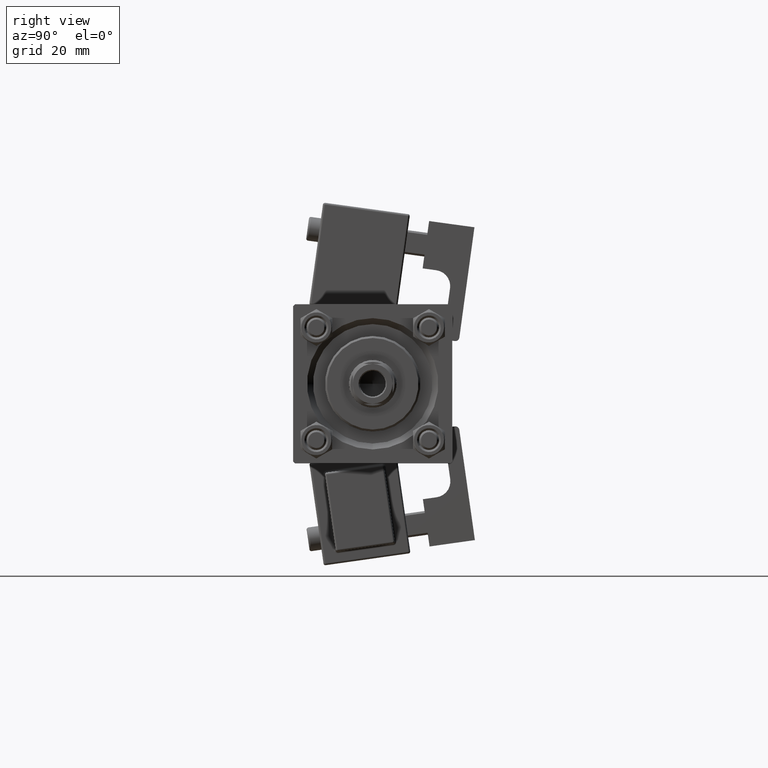
[diagram: clean part render]
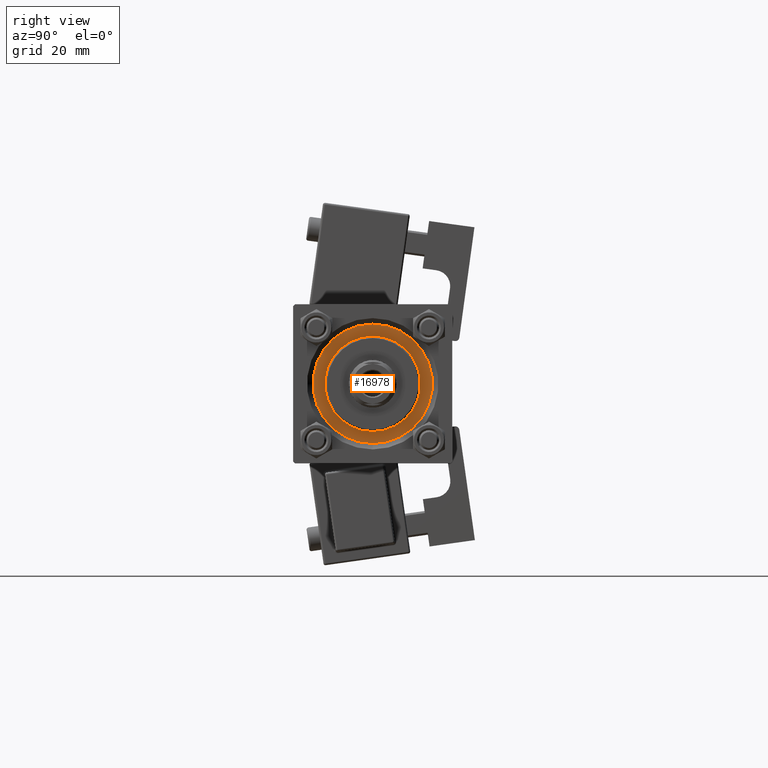
[diagram: same view with one face highlighted and labeled with its STEP entity id]
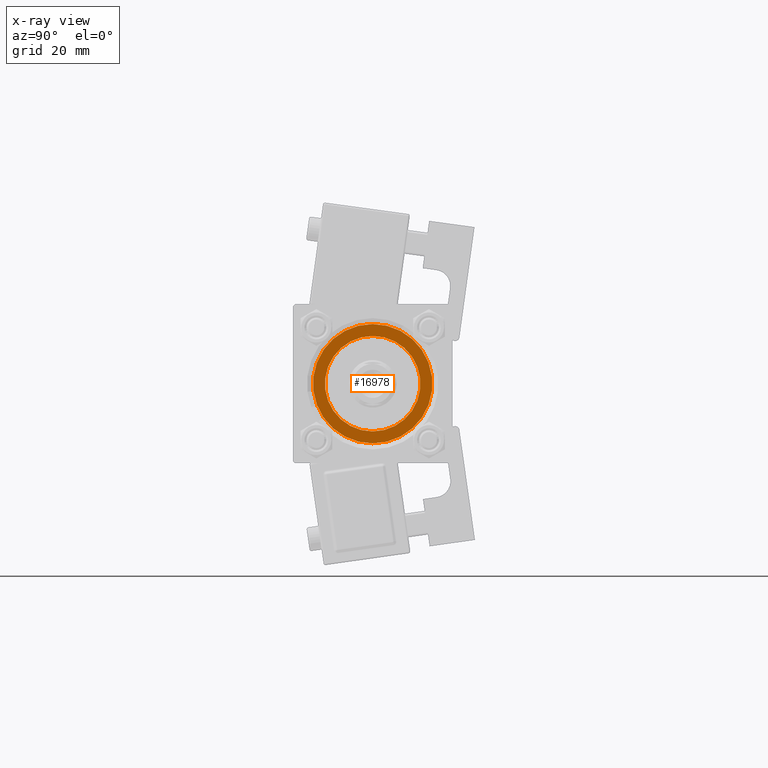
[diagram: x-ray of the same camera — body ghosted, the highlighted face saturated]
A machine part, right view. The second image highlights one B-rep face of the part: STEP entity #16978.
The next image is the same camera in x-ray: the body ghosted, the highlighted face saturated — about 0% of this face is hidden behind the body in this view.
In plain terms, the highlighted planar face has unit normal (1, 0, -0).
Its self-contained STEP definition (entity closure, byte-faithful):
#2430 = CIRCLE ( 'NONE', #24263, 15.00000000000000000 ) ;
#6551 = CARTESIAN_POINT ( 'NONE',  ( -15.00000000000000000, 0.000000000000000000, 28.69999999999999929 ) ) ;
#6954 = ORIENTED_EDGE ( 'NONE', *, *, #18732, .F. ) ;
#7937 = VERTEX_POINT ( 'NONE', #21733 ) ;
#8318 = FACE_OUTER_BOUND ( 'NONE', #44309, .T. ) ;
#10850 = DIRECTION ( 'NONE',  ( 0.000000000000000000, 0.000000000000000000, 1.000000000000000000 ) ) ;
#12019 = CARTESIAN_POINT ( 'NONE',  ( 0.000000000000000000, 0.000000000000000000, 28.69999999999999929 ) ) ;
#12253 = ORIENTED_EDGE ( 'NONE', *, *, #26109, .F. ) ;
#12805 = DIRECTION ( 'NONE',  ( 1.000000000000000000, 0.000000000000000000, 0.000000000000000000 ) ) ;
#15980 = CARTESIAN_POINT ( 'NONE',  ( 0.000000000000000000, 0.000000000000000000, 28.69999999999999929 ) ) ;
#16978 = ADVANCED_FACE ( 'NONE', ( #43867, #8318 ), #35701, .T. ) ;
#17719 = AXIS2_PLACEMENT_3D ( 'NONE', #32012, #19629, #24372 ) ;
#18162 = DIRECTION ( 'NONE',  ( 0.000000000000000000, 0.000000000000000000, 1.000000000000000000 ) ) ;
#18732 = EDGE_CURVE ( 'NONE', #48074, #7937, #50412, .T. ) ;
#19166 = ORIENTED_EDGE ( 'NONE', *, *, #41515, .T. ) ;
#19629 = DIRECTION ( 'NONE',  ( 0.000000000000000000, 0.000000000000000000, 1.000000000000000000 ) ) ;
#21733 = CARTESIAN_POINT ( 'NONE',  ( 12.00000000000000178, 1.469576158976824144E-15, 28.69999999999999929 ) ) ;
#22197 = DIRECTION ( 'NONE',  ( 1.000000000000000000, 0.000000000000000000, 0.000000000000000000 ) ) ;
#23108 = EDGE_CURVE ( 'NONE', #51819, #36523, #34591, .T. ) ;
#24263 = AXIS2_PLACEMENT_3D ( 'NONE', #50029, #18162, #50288 ) ;
#24372 = DIRECTION ( 'NONE',  ( 1.000000000000000000, 0.000000000000000000, -0.000000000000000000 ) ) ;
#26109 = EDGE_CURVE ( 'NONE', #7937, #48074, #28838, .T. ) ;
#27690 = AXIS2_PLACEMENT_3D ( 'NONE', #12019, #27803, #12805 ) ;
#27803 = DIRECTION ( 'NONE',  ( 0.000000000000000000, 0.000000000000000000, 1.000000000000000000 ) ) ;
#28838 = CIRCLE ( 'NONE', #33062, 12.00000000000000178 ) ;
#29149 = CARTESIAN_POINT ( 'NONE',  ( -12.00000000000000178, 0.000000000000000000, 28.69999999999999929 ) ) ;
#32012 = CARTESIAN_POINT ( 'NONE',  ( 0.000000000000000000, 0.000000000000000000, 28.69999999999999929 ) ) ;
#33062 = AXIS2_PLACEMENT_3D ( 'NONE', #46928, #10850, #22197 ) ;
#34591 = CIRCLE ( 'NONE', #41343, 15.00000000000000000 ) ;
#35701 = PLANE ( 'NONE',  #17719 ) ;
#35998 = DIRECTION ( 'NONE',  ( 1.000000000000000000, 0.000000000000000000, 0.000000000000000000 ) ) ;
#36523 = VERTEX_POINT ( 'NONE', #41277 ) ;
#41277 = CARTESIAN_POINT ( 'NONE',  ( 15.00000000000000000, 1.836970198721029589E-15, 28.69999999999999929 ) ) ;
#41343 = AXIS2_PLACEMENT_3D ( 'NONE', #15980, #43899, #35998 ) ;
#41515 = EDGE_CURVE ( 'NONE', #36523, #51819, #2430, .T. ) ;
#43867 = FACE_BOUND ( 'NONE', #51617, .T. ) ;
#43899 = DIRECTION ( 'NONE',  ( 0.000000000000000000, 0.000000000000000000, 1.000000000000000000 ) ) ;
#44309 = EDGE_LOOP ( 'NONE', ( #51682, #19166 ) ) ;
#46928 = CARTESIAN_POINT ( 'NONE',  ( 0.000000000000000000, 0.000000000000000000, 28.69999999999999929 ) ) ;
#48074 = VERTEX_POINT ( 'NONE', #29149 ) ;
#50029 = CARTESIAN_POINT ( 'NONE',  ( 0.000000000000000000, 0.000000000000000000, 28.69999999999999929 ) ) ;
#50288 = DIRECTION ( 'NONE',  ( 1.000000000000000000, 0.000000000000000000, 0.000000000000000000 ) ) ;
#50412 = CIRCLE ( 'NONE', #27690, 12.00000000000000178 ) ;
#51617 = EDGE_LOOP ( 'NONE', ( #6954, #12253 ) ) ;
#51682 = ORIENTED_EDGE ( 'NONE', *, *, #23108, .T. ) ;
#51819 = VERTEX_POINT ( 'NONE', #6551 ) ;